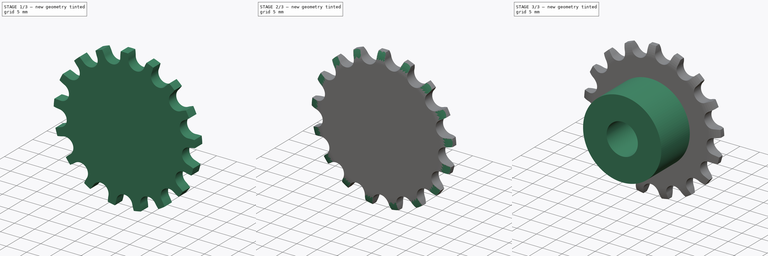
[diagram: build sequence overview — one tinted view per stage of 3, left to right]
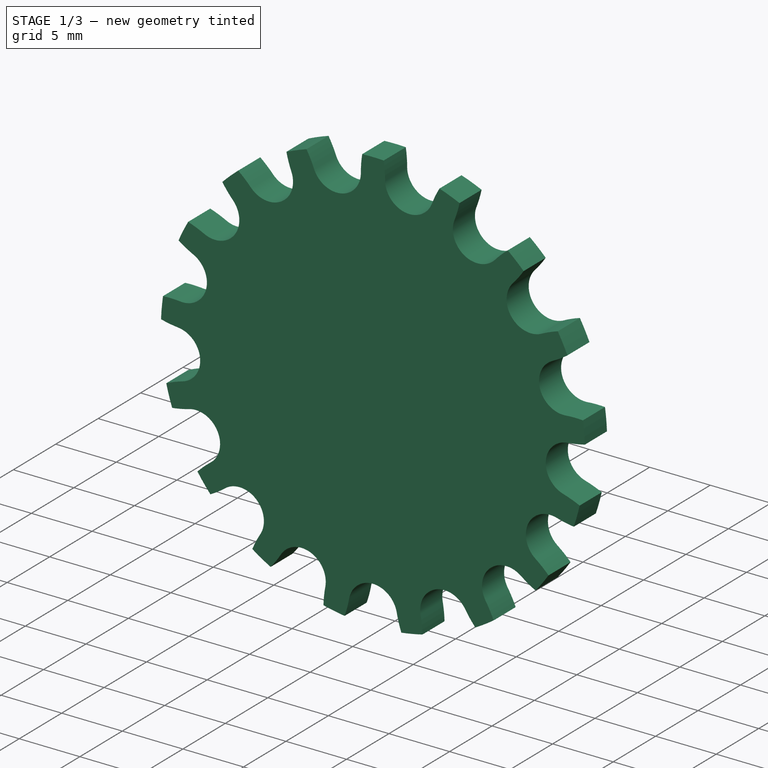
[diagram: stage 1 of 3 — iso view after this stage's code; geometry added in this stage tinted green]
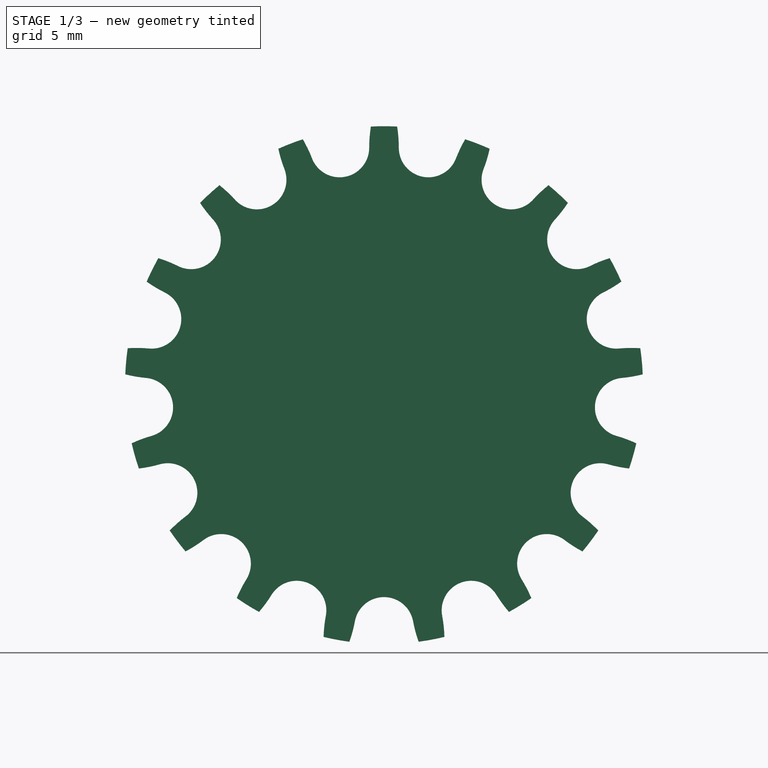
[diagram: stage 1 of 3 — front view after this stage's code; geometry added in this stage tinted green]
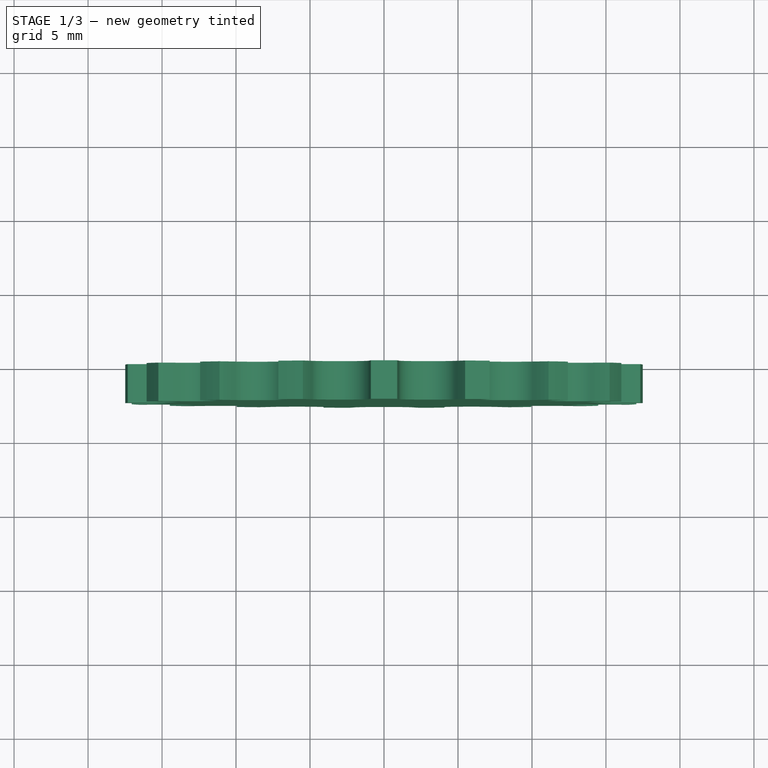
[diagram: stage 1 of 3 — top view after this stage's code; geometry added in this stage tinted green]
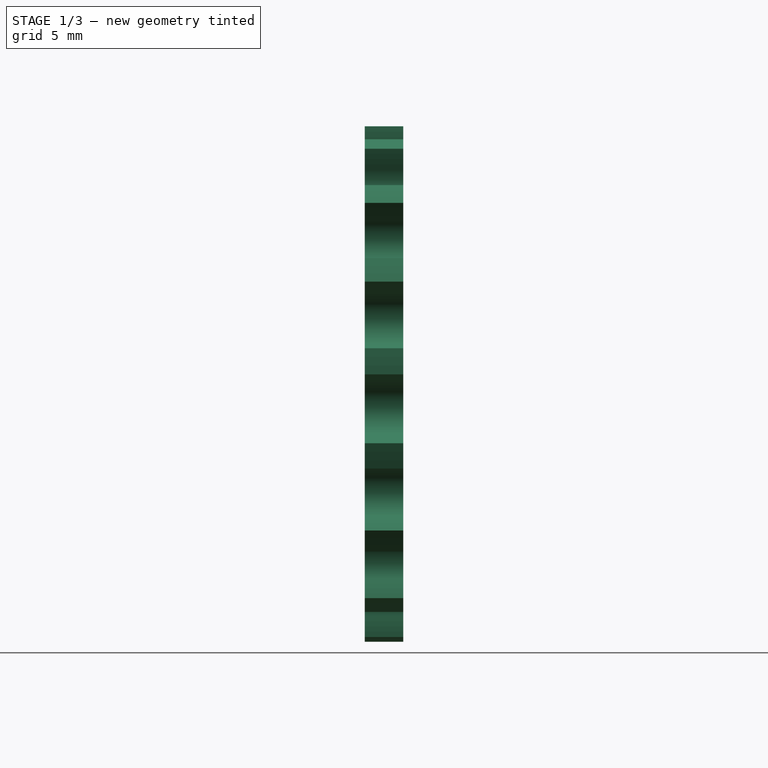
[diagram: stage 1 of 3 — right view after this stage's code; geometry added in this stage tinted green]
FCSTD DOCUMENT  (FreeCAD 0.19R24212 (Git))
Label: Sprocket ISO606 simplex 6x2,8 z17
License: CC BY 3.0
LicenseURL: http://creativecommons.org/licenses/by/3.0/
objects: Sketcher::SketchObject×4, PartDesign::Pad×2, Spreadsheet::Sheet×1, PartDesign::PolarPattern×1, PartDesign::Groove×1, PartDesign::Pocket×1, PartDesign::Body×1, App::Part×1
note: 14 computed .brp shape members not serialized (recipe doc carries the construction recipe); baked Part::Feature solids carry a one-line shape summary decoded from their .brp

FEATURE [Spreadsheet::Sheet] Spreadsheet  label="Data"
  cells = A1=P (Pitch); B1=Wc (Chain width); C1=Dr (Roller diameter); D1=Tr (Tooth radius); E1=Rw (Radius width); F1=Wt (Tooth width); G1=z (Number of teeth); H1=De (External Diameter); I1=Dp (pitch diameter); J1=d (Hub diameter); K1=D (Hole diameter); L1=H (Total height); M1=Di (Internal Diameter); N1=Ru (Exit Radius); A2(P)==6mm; B2(Wc)==2.8mm; C2(Dr)==4mm; D2(Tr)==6mm; E2(Rw)==0.7mm; F2(Wt)==2.6mm; G2(z)=17; H2(De)==35mm; I2(Dp)==32.65mm; J2(d)==20mm; K2(D)==8mm; L2(H)==13mm; M2(Di)==Dp - Dr; N2(Ru)==0.12 * Dr * (z + 2)
FEATURE [Sketcher::SketchObject] Sketch  label="Tooth sketch"
  FullyConstrained = true
  MapMode = 5
  Placement = pos=(0,0,0) rot=(1,0,0;1.5708rad)
  Support = -> [XZ_Plane]
  expr: .Constraints.Di = <<Data>>.Di
  expr: .Constraints.Dr = <<Data>>.Dr
  expr: .Constraints.P = Spreadsheet.P
  expr: .Constraints.Dp = <<Data>>.Dp
  expr: .Constraints.De = <<Data>>.De
  expr: .Constraints.Ru = <<Data>>.Ru
  sketch-geometry (16):
    g0: Circle CenterX=0 CenterY=0 CenterZ=0 NormalX=0 NormalY=0 NormalZ=1 AngleXU=0 Radius=16.325
    g1: LineSegment StartX=-3 StartY=16.047 StartZ=0 EndX=3 EndY=16.047 EndZ=0
    g2: Circle CenterX=-3 CenterY=16.047 CenterZ=0 NormalX=0 NormalY=0 NormalZ=1 AngleXU=0 Radius=2
    g3: Circle CenterX=3 CenterY=16.047 CenterZ=0 NormalX=0 NormalY=0 NormalZ=1 AngleXU=0 Radius=2
    g4: LineSegment StartX=0 StartY=0 StartZ=0 EndX=-3 EndY=16.047 EndZ=0
    g5: LineSegment StartX=0 StartY=0 StartZ=0 EndX=3 EndY=16.047 EndZ=0
    g6: Circle CenterX=0 CenterY=0 CenterZ=0 NormalX=0 NormalY=0 NormalZ=1 AngleXU=0 Radius=14.325
    g7: Circle CenterX=0 CenterY=0 CenterZ=0 NormalX=0 NormalY=0 NormalZ=1 AngleXU=0 Radius=17.5
    g8: ArcOfCircle CenterX=-3 CenterY=16.047 CenterZ=0 NormalX=0 NormalY=0 NormalZ=1 AngleXU=0 Radius=2 StartAngle=4.89721 EndAngle=6.28319
    g9: ArcOfCircle CenterX=8.12 CenterY=16.047 CenterZ=0 NormalX=0 NormalY=0 NormalZ=1 AngleXU=0 Radius=9.12 StartAngle=2.98409 EndAngle=3.14159
    g10: ArcOfCircle CenterX=3 CenterY=16.047 CenterZ=0 NormalX=0 NormalY=0 NormalZ=1 AngleXU=0 Radius=2 StartAngle=3.14159 EndAngle=4.52757
    g11: ArcOfCircle CenterX=-8.12 CenterY=16.047 CenterZ=0 NormalX=0 NormalY=0 NormalZ=1 AngleXU=0 Radius=9.12 StartAngle=0 EndAngle=0.157506
    g12: ArcOfCircle CenterX=0 CenterY=0 CenterZ=0 NormalX=0 NormalY=0 NormalZ=1 AngleXU=0 Radius=17.5 StartAngle=1.52008 EndAngle=1.62151
    g13: LineSegment StartX=-2.63247 StartY=14.081 StartZ=0 EndX=-2.63247 EndY=0 EndZ=0
    g14: LineSegment StartX=2.63247 StartY=14.081 StartZ=0 EndX=2.63247 EndY=0 EndZ=0
    g15: LineSegment StartX=-2.63247 StartY=0 StartZ=0 EndX=2.63247 EndY=0 EndZ=0
  constraints (42):
    c: Coincident(g0,g-1)
    c: Diameter(g0) = 32.65  'Dp'
    c: PointOnObject(g1,g0)
    c: PointOnObject(g1,g0)
    c: Horizontal(g1)
    c: DistanceX(g1,g1) = 6  'P'
    c: Coincident(g2,g1)
    c: Coincident(g3,g1)
    c: Equal(g2,g3)
    c: Diameter(g2) = 4  'Dr'
    c: Coincident(g4,g-1)
    c: Coincident(g4,g1)
    c: Coincident(g5,g-1)
    c: Coincident(g6,g-1)
    c: Diameter(g6) = 28.65  'Di'
    c: Coincident(g7,g-1)
    c: Diameter(g7) = 35  'De'
    c: Coincident(g8,g1)
    c: PointOnObject(g8,g4)
    c: PointOnObject(g8,g2)
    c: PointOnObject(g8,g1)
    c: PointOnObject(g9,g7)
    c: Tangent(g9,g8) = 1.5708
    c: Radius(g9) = 9.12  'Ru'
    c: Coincident(g10,g1)
    c: PointOnObject(g10,g5)
    c: PointOnObject(g10,g1)
    c: Equal(g9,g11)
    c: Coincident(g12,g-1)
    c: Coincident(g12,g9)
    c: Coincident(g12,g11)
    c: Coincident(g5,g10)
    c: Equal(g10,g8)
    c: Tangent(g11,g10) = 1.5708
    c: Coincident(g13,g8)
    c: Vertical(g13)
    c: Coincident(g14,g10)
    c: Vertical(g14)
    c: Coincident(g15,g13)
    c: Coincident(g15,g14)
    c: Horizontal(g15)
    c: PointOnObject(g12,g15)
FEATURE [PartDesign::Pad] Pad  label="Tooth"
  Direction = (1,1,1)
  Length = 2.6
  Length2 = 100
  Placement = pos=(0,0,0) rot=(1,0,0;1.5708rad)
  Profile = -> Sketch
  Type = 0
  expr: Length = <<Data>>.Wt
FEATURE [Sketcher::SketchObject] Sketch001  label="Radius"
  FullyConstrained = true
  MapMode = 5
  Placement = pos=(0,0,0) rot=(0.57735,0.57735,0.57735;2.0944rad)
  Support = -> [YZ_Plane]
  expr: .Constraints.Tr = <<Data>>.Tr
  expr: .Constraints.Rw = <<Data>>.Rw
  expr: .Constraints.Re = <<Data>>.De / 2
  expr: .Constraints.Wt = <<Data>>.Wt
  sketch-geometry (7):
    g0: ArcOfCircle CenterX=3.4 CenterY=14.6875 CenterZ=0 NormalX=0 NormalY=0 NormalZ=1 AngleXU=0 Radius=6 StartAngle=2.65372 EndAngle=3.1416
    g1: LineSegment StartX=-1.9 StartY=17.5 StartZ=0 EndX=-2.6 EndY=17.5 EndZ=0
    g2: LineSegment StartX=-2.6 StartY=17.5 StartZ=0 EndX=-2.6 EndY=14.6875 EndZ=0
    g3: LineSegment StartX=-0.7 StartY=17.5 StartZ=0 EndX=0 EndY=17.5 EndZ=0
    g4: LineSegment StartX=0 StartY=17.5 StartZ=0 EndX=0 EndY=14.6875 EndZ=0
    g5: ArcOfCircle CenterX=-6 CenterY=14.6875 CenterZ=0 NormalX=0 NormalY=0 NormalZ=1 AngleXU=0 Radius=6 StartAngle=6.28318 EndAngle=6.77106
    g6: LineSegment StartX=-1.9 StartY=17.5 StartZ=0 EndX=-0.7 EndY=17.5 EndZ=0
  constraints (22):
    c: Radius(g0) = 6  'Tr'
    c: Coincident(g1,g0)
    c: Horizontal(g1)
    c: DistanceX(g1,g1) = 0.7  'Rw'
    c: Coincident(g2,g1)
    c: Coincident(g2,g0)
    c: Vertical(g2)
    c: Tangent(g2,g0)
    c: Horizontal(g3)
    c: Coincident(g4,g3)
    c: Vertical(g4)
    c: Coincident(g5,g3)
    c: Coincident(g5,g4)
    c: Equal(g1,g3)
    c: Equal(g2,g4)
    c: Equal(g0,g5)
    c: DistanceY(g3) = 17.5  'Re'
    c: DistanceX(g1,g3) = 2.6  'Wt'
    c: Coincident(g6,g0)
    c: Coincident(g6,g3)
    c: Horizontal(g6)
    c: PointOnObject(g3,g-2)
FEATURE [PartDesign::PolarPattern] PolarPattern  label="Teeth"
  Angle = 360
  Axis = -> Y_Axis
  BaseFeature = -> Pad
  Occurrences = 17
  Originals = -> [Pad]
  Placement = pos=(0,0,0) rot=(1,0,0;1.5708rad)
  Refine = true
  expr: Occurrences = <<Data>>.z
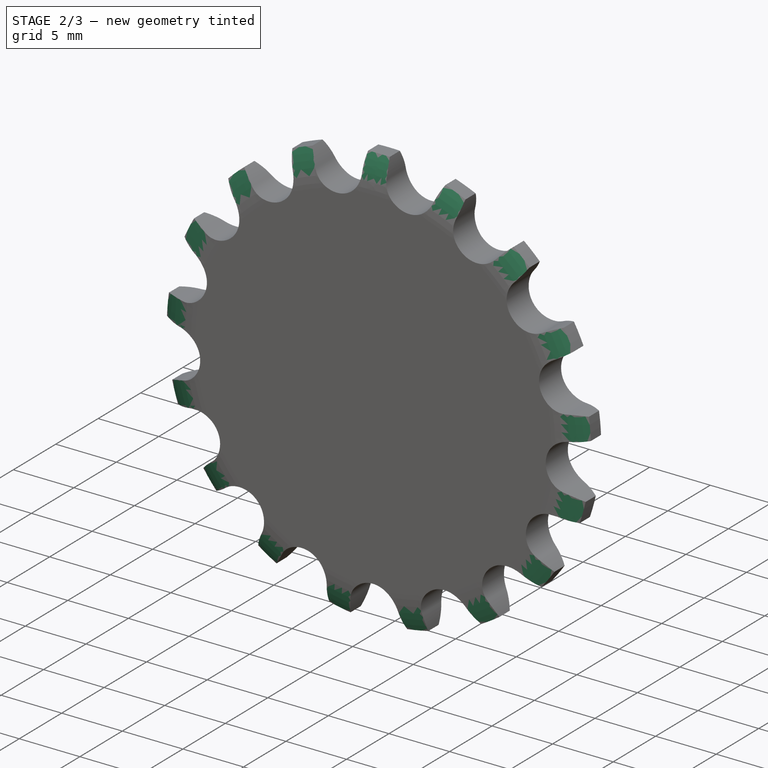
[diagram: stage 2 of 3 — iso view after this stage's code; geometry added in this stage tinted green]
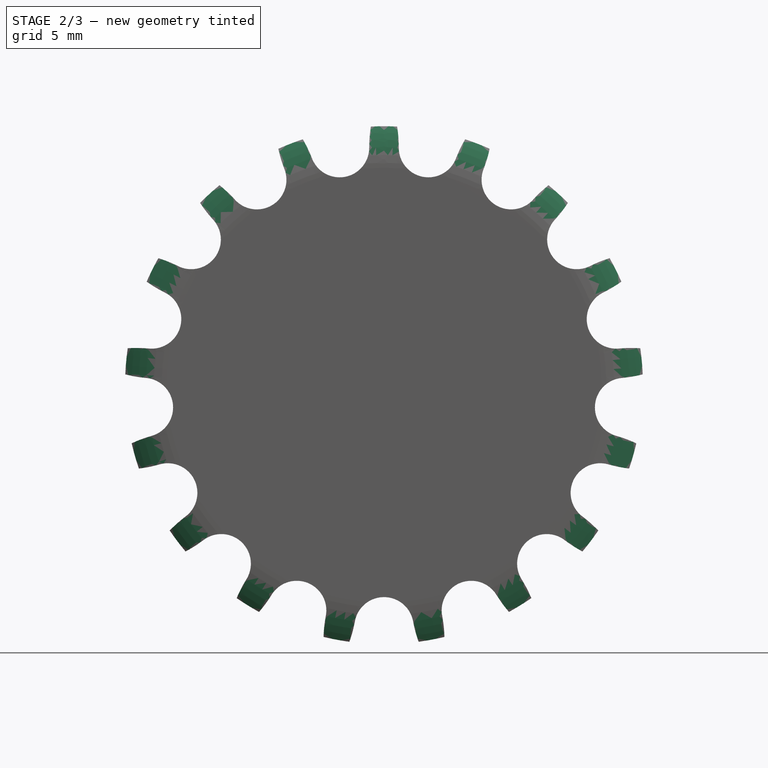
[diagram: stage 2 of 3 — front view after this stage's code; geometry added in this stage tinted green]
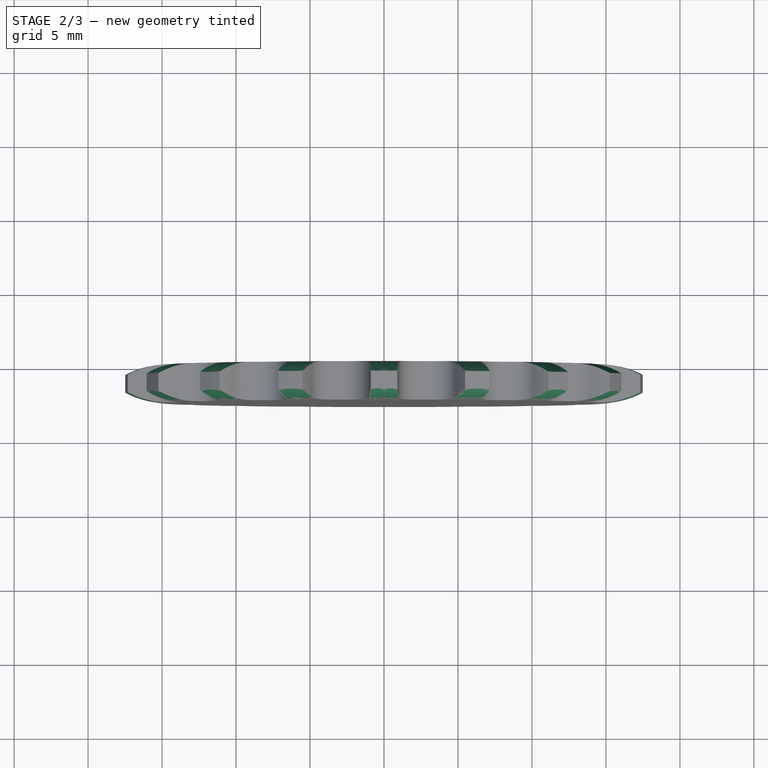
[diagram: stage 2 of 3 — top view after this stage's code; geometry added in this stage tinted green]
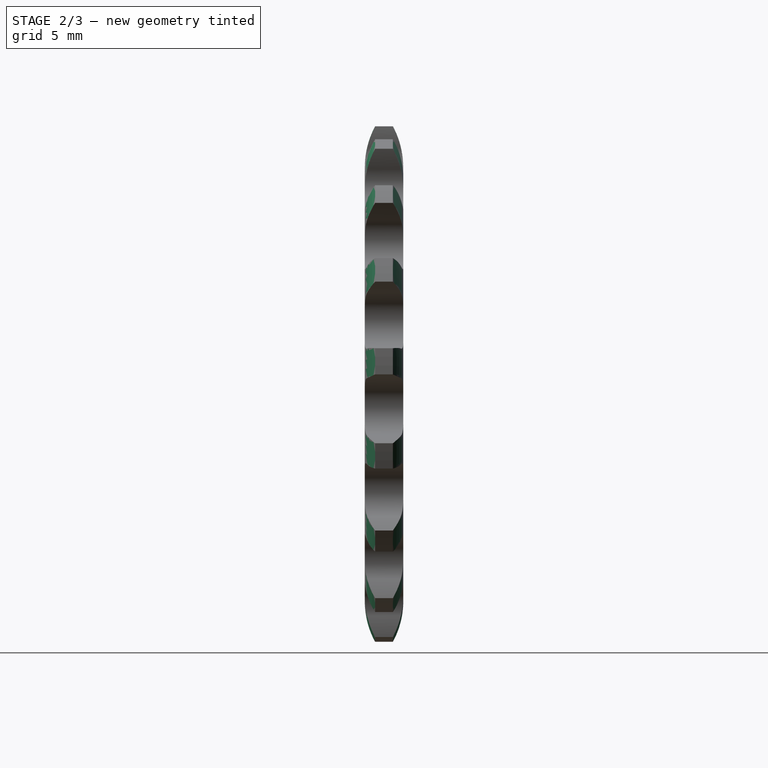
[diagram: stage 2 of 3 — right view after this stage's code; geometry added in this stage tinted green]
FEATURE [PartDesign::Groove] Groove  label="Teeth Radius"
  Angle = 360
  Axis = (1e-16,1,-1e-16)
  Base = (0,0,0)
  BaseFeature = -> PolarPattern
  Placement = pos=(0,0,0) rot=(1,0,0;1.5708rad)
  Profile = -> Sketch001
  ReferenceAxis = -> Y_Axis
  Reversed = true
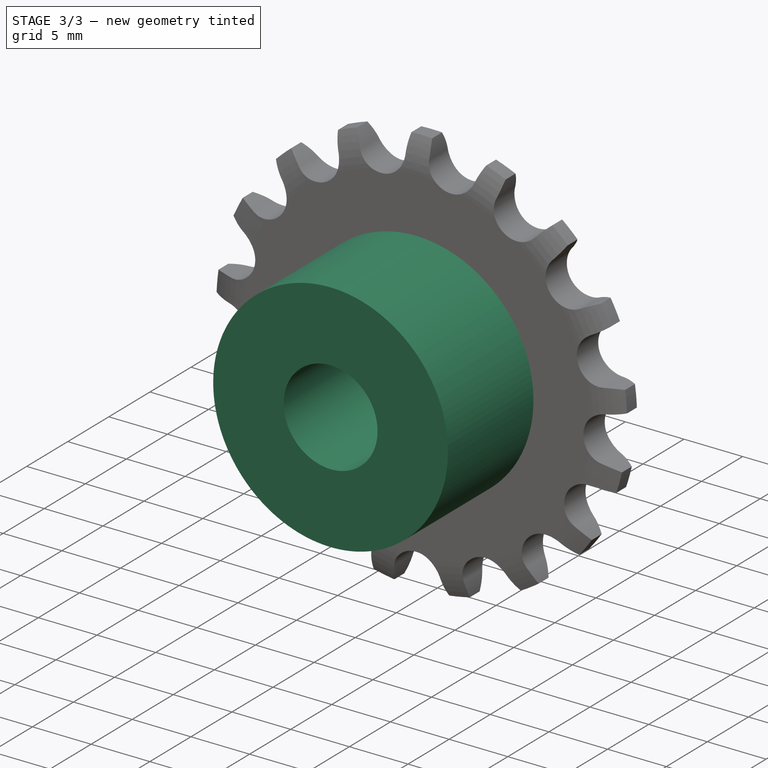
[diagram: stage 3 of 3 — iso view after this stage's code; geometry added in this stage tinted green]
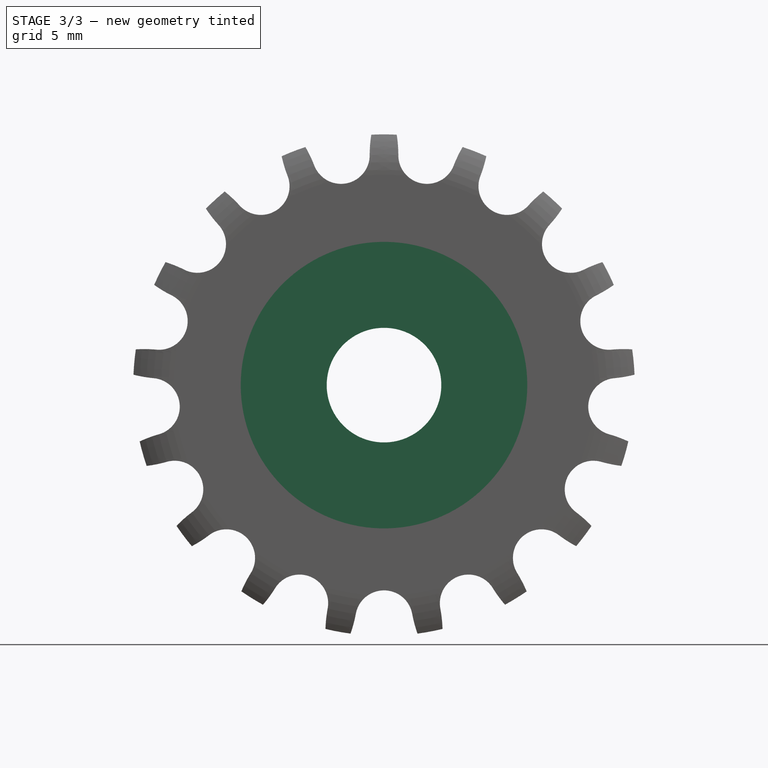
[diagram: stage 3 of 3 — front view after this stage's code; geometry added in this stage tinted green]
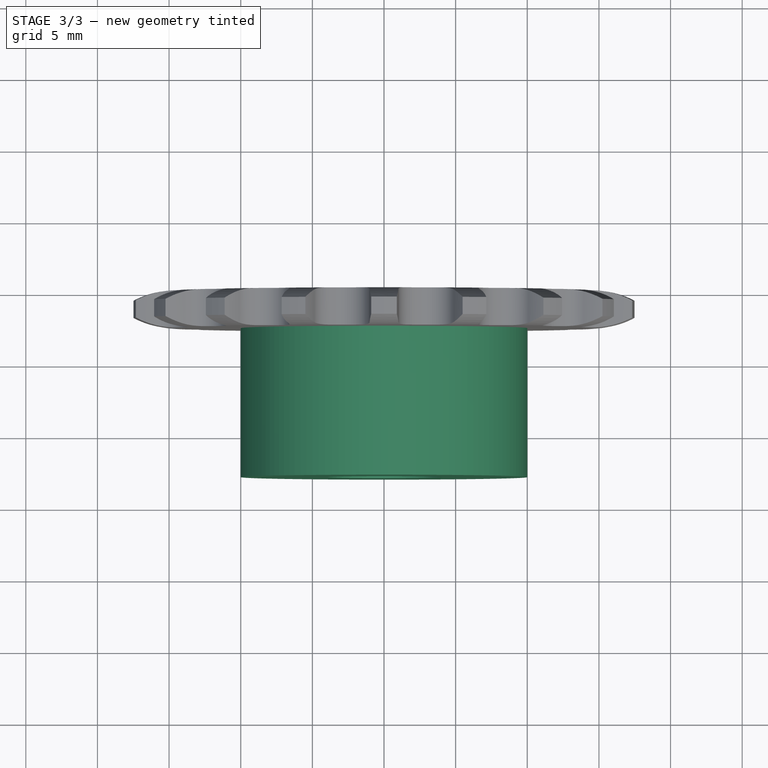
[diagram: stage 3 of 3 — top view after this stage's code; geometry added in this stage tinted green]
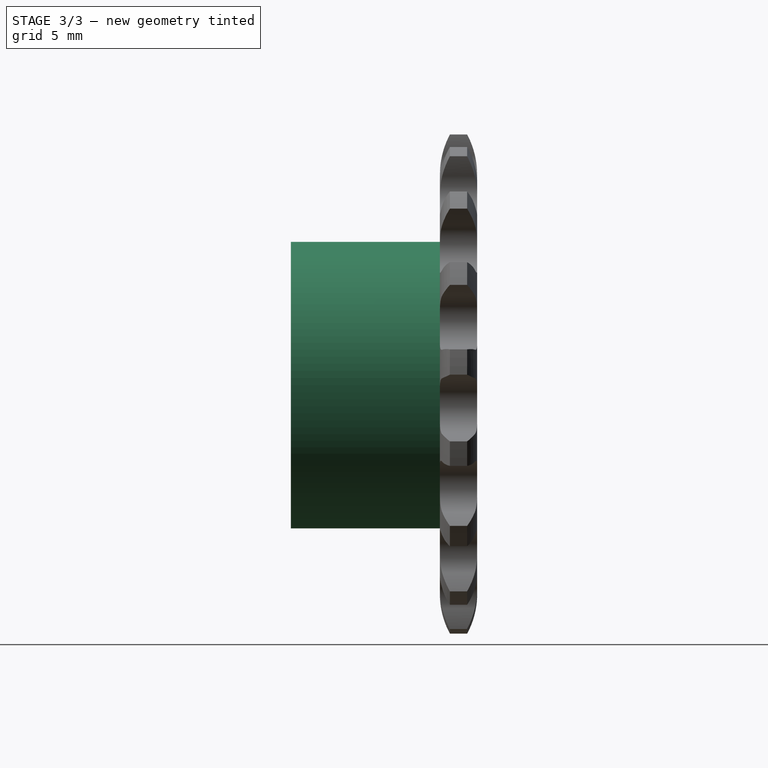
[diagram: stage 3 of 3 — right view after this stage's code; geometry added in this stage tinted green]
FEATURE [Sketcher::SketchObject] Sketch002  label="Hub sketch"
  FullyConstrained = true
  MapMode = 5
  Placement = pos=(0,0,0) rot=(1,0,0;1.5708rad)
  Support = -> [XZ_Plane]
  expr: .Constraints.d = <<Data>>.d
  sketch-geometry (1):
    g0: Circle CenterX=0 CenterY=0 CenterZ=0 NormalX=0 NormalY=0 NormalZ=1 AngleXU=0 Radius=10
  constraints (2):
    c: Coincident(g0,g-1)
    c: Diameter(g0) = 20  'd'
FEATURE [PartDesign::Pad] Pad001  label="Hub"
  BaseFeature = -> Groove
  Direction = (1,1,1)
  Length = 13
  Length2 = 100
  Placement = pos=(0,0,0) rot=(1,0,0;1.5708rad)
  Profile = -> Sketch002
  Type = 0
  expr: Length = <<Data>>.H
FEATURE [Sketcher::SketchObject] Sketch003  label="Hole sketch"
  FullyConstrained = true
  MapMode = 5
  Placement = pos=(0,0,0) rot=(1,0,0;1.5708rad)
  Support = -> [XZ_Plane]
  expr: .Constraints.D = <<Data>>.D
  sketch-geometry (1):
    g0: Circle CenterX=0 CenterY=0 CenterZ=0 NormalX=0 NormalY=0 NormalZ=1 AngleXU=0 Radius=4
  constraints (2):
    c: Coincident(g0,g-1)
    c: Diameter(g0) = 8  'D'
FEATURE [PartDesign::Pocket] Pocket  label="Hole"
  BaseFeature = -> Pad001
  Length = 5
  Length2 = 100
  Midplane = true
  Placement = pos=(0,0,0) rot=(1,0,0;1.5708rad)
  Profile = -> Sketch003
  Type = 1
FEATURE [PartDesign::Body] Body  label="Sprocket"
  Group = -> [Sketch,Pad,Sketch002,Sketch003,PolarPattern,Sketch001,Groove,Pad001,Pocket]
  Origin = -> Origin
  Tip = -> Pocket
FEATURE [App::Part] Part  label="Sprocket ISO606 simplex 6x2,8 z17"
  Group = -> [Body]
  Origin = -> Origin001
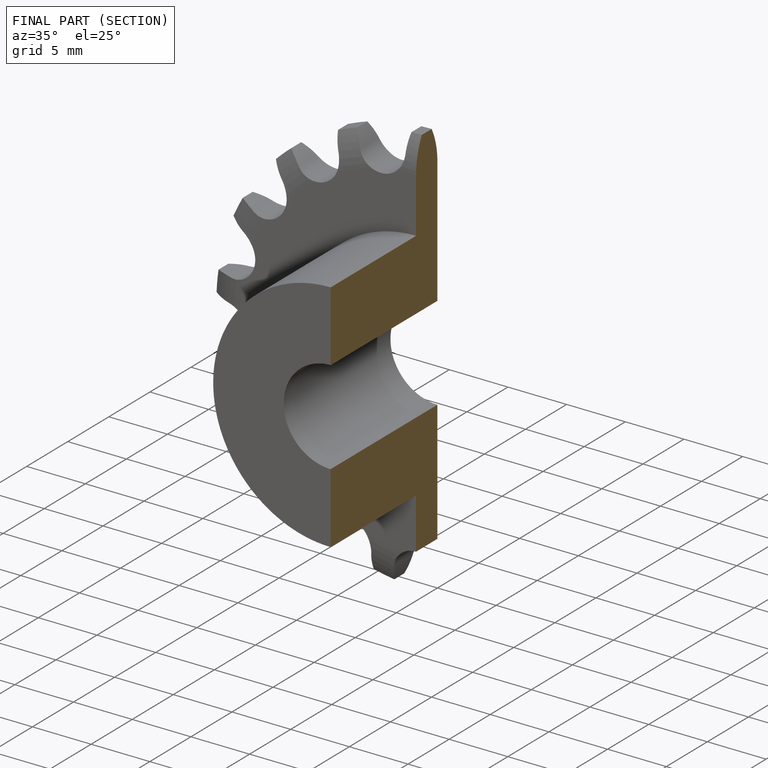
[diagram: finished part — half-section view (interior)]
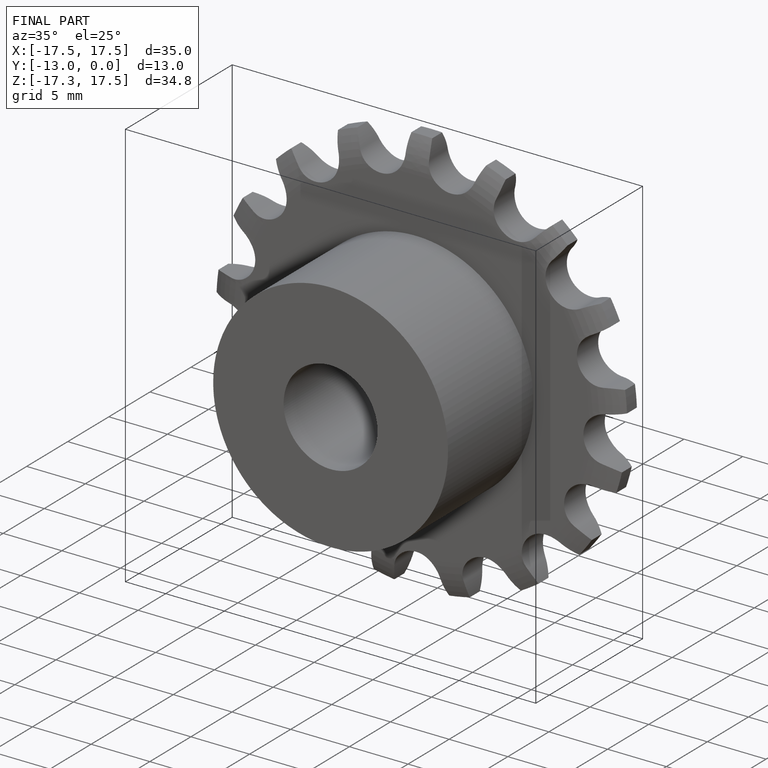
[diagram: finished part — iso view with bounding-box wireframe]
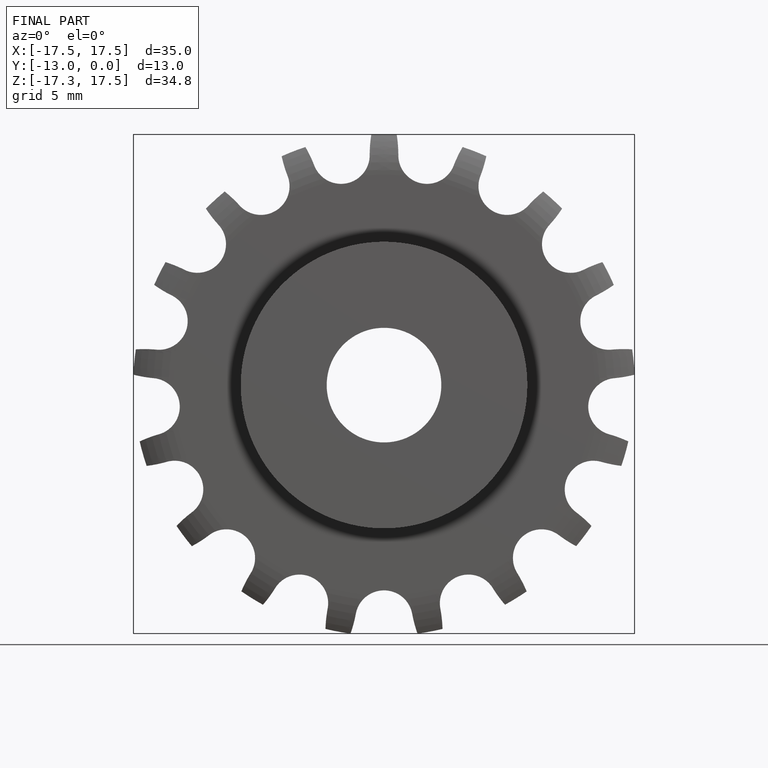
[diagram: finished part — front view with bounding-box wireframe]
